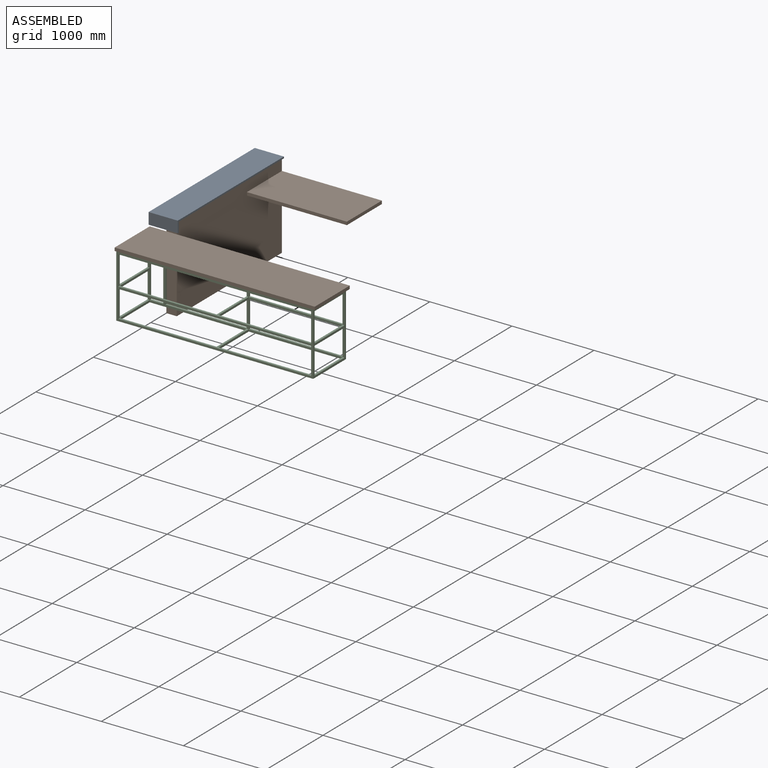
[diagram: assembled view]
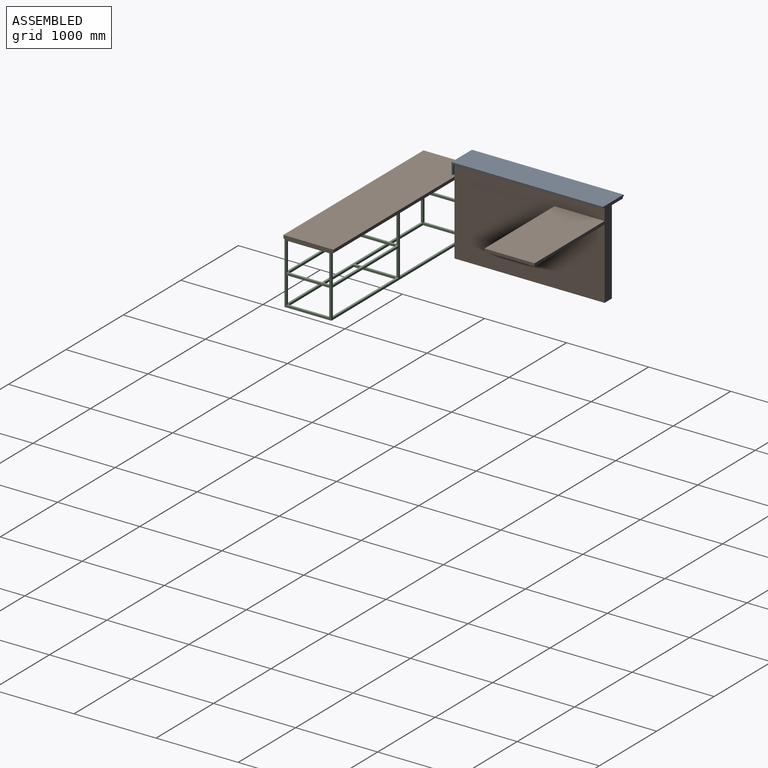
[diagram: assembled view, second angle]
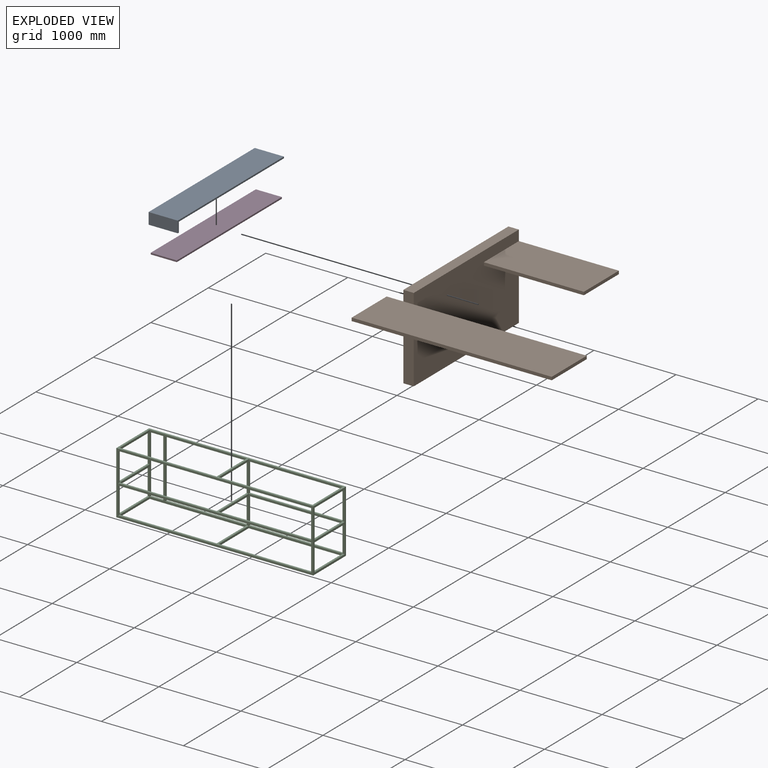
[diagram: exploded view]
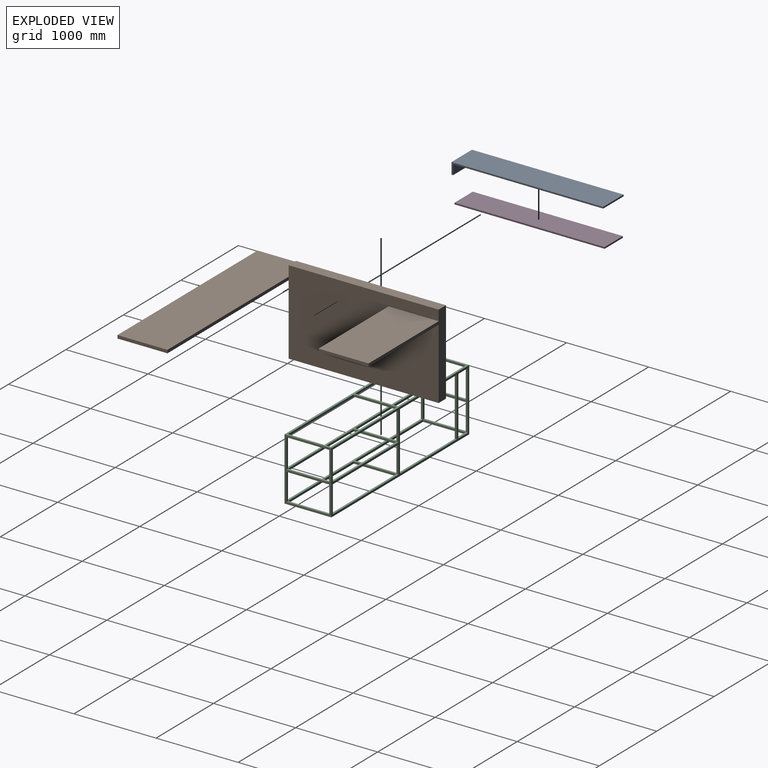
[diagram: exploded view, second angle]
ASSEMBLY  parts=4 mates=7
PART A: 8 faces, bbox 355.6x1847.9x139.7 mm
  f0: plane 355.6x19.05mm, normal (0,1,0), area 6774.2mm2, adj f1,f5,f6,f7
  f1: plane 1847.85x355.6mm, normal (0,0,1), area 657095.5mm2, adj f0,f2,f6,f7
  f2: plane 355.6x139.7mm, normal (0,-1,0), area 49677.3mm2, adj f1,f3,f6,f7
  f3: plane 355.6x19.05mm, normal (0,0,-1), area 6774.2mm2, adj f2,f4,f6,f7
  f4: plane 355.6x120.65mm, normal (0,1,0), area 42903.1mm2, adj f3,f5,f6,f7
  f5: plane 1828.8x355.6mm, normal (0,0,-1), area 650321.3mm2, adj f0,f4,f6,f7
  f6: plane 1847.85x139.7mm, normal (1,0,0), area 37499.9mm2, adj f0,f1,f2,f3,f4,f5
  f7: plane 1847.85x139.7mm, normal (-1,0,0), area 37499.9mm2, adj f0,f1,f2,f3,f4,f5
PART B: 18 faces, bbox 2438.4x2438.4x1028.7 mm
  f0: plane 127x127mm, normal (0,-1,0), area 16129mm2, adj f1,f3,f5,f17
  f1: plane 1828.8x1028.7mm, normal (1,0,0), area 1858060.8mm2, adj f0,f2,f4,f5,f6,f7,f8,f9
  f2: plane 1346.2x1028.7mm, normal (0,1,0), area 177096.4mm2, adj f1,f3,f5,f6,f7,f9,f10
  f3: plane 1828.8x1028.7mm, normal (-1,0,0), area 1881286.6mm2, adj f0,f2,f4,f5,f6,f11
  f4: plane 863.6x127mm, normal (0,-1,0), area 109677.2mm2, adj f1,f3,f6,f16
  f5: plane 1828.8x127mm, normal (0,0,1), area 232257.6mm2, adj f0,f1,f2,f3
  f6: plane 1828.8x127mm, normal (0,0,-1), area 232257.6mm2, adj f1,f2,f3,f4
  f7: plane 1219.2x609.6mm, normal (0,0,1), area 743224.3mm2, adj f1,f2,f8,f10
  f8: plane 1219.2x38.1mm, normal (0,-1,0), area 46451.5mm2, adj f1,f7,f9,f10
  f9: plane 1219.2x609.6mm, normal (0,0,-1), area 743224.3mm2, adj f1,f2,f8,f10
  f10: plane 609.6x38.1mm, normal (1,0,0), area 23225.8mm2, adj f2,f7,f8,f9
  f11: plane 203.2x38.1mm, normal (0,1,0), area 7741.9mm2, adj f3,f13,f16,f17
  f12: plane 2108.2x38.1mm, normal (0,1,0), area 80322.4mm2, adj f1,f15,f16,f17
  f13: plane 609.6x38.1mm, normal (-1,0,0), area 23225.8mm2, adj f11,f14,f16,f17
  f14: plane 2438.4x38.1mm, normal (0,-1,0), area 92903mm2, adj f13,f15,f16,f17
  f15: plane 609.6x38.1mm, normal (1,0,0), area 23225.8mm2, adj f12,f14,f16,f17
  f16: plane 2438.4x609.6mm, normal (0,0,-1), area 1486448.6mm2, adj f4,f11,f12,f13,f14,f15
  f17: plane 2438.4x609.6mm, normal (0,0,1), area 1486448.6mm2, adj f0,f11,f12,f13,f14,f15
PART C: 68 faces, bbox 2400.3x571.5x762 mm
  f0: plane 990.6x25.4mm, normal (0,0,-1), area 25161.2mm2, adj f41,f56,f59,f67
  f1: plane 990.6x25.4mm, normal (0,0,1), area 25161.2mm2, adj f41,f56,f59,f67
  f2: plane 355.6x25.4mm, normal (-1,0,0), area 9032.2mm2, adj f20,f54,f59,f63
  f3: plane 520.7x25.4mm, normal (-1,0,0), area 13225.8mm2, adj f16,f35,f37,f64
  f4: plane 330.2x25.4mm, normal (1,0,0), area 8387.1mm2, adj f8,f59,f62,f65
  f5: plane 520.7x25.4mm, normal (1,0,0), area 13225.8mm2, adj f16,f24,f30,f64
  f6: plane 165.1x25.4mm, normal (0,0,-1), area 4193.5mm2, adj f47,f56,f59,f66
  f7: plane 2349.5x546.1mm, normal (0,0,-1), area 72903.1mm2, adj f15,f17,f19,f21,f31,f42,f43,f61
  f8: plane 1143x25.4mm, normal (0,0,1), area 29032.2mm2, adj f4,f36,f53,f59
  f9: plane 2349.5x546.1mm, normal (0,0,1), area 72903.1mm2, adj f10,f14,f23,f28,f31,f51,f52,f62
  f10: plane 1143x25.4mm, normal (0,1,0), area 29032.2mm2, adj f9,f26,f34,f52
  f11: plane 355.6x25.4mm, normal (0,1,0), area 9032.2mm2, adj f19,f25,f46,f50
  f12: plane 330.2x25.4mm, normal (0,1,0), area 8387.1mm2, adj f23,f25,f44,f48
  f13: plane 1181.1x25.4mm, normal (0,1,0), area 29999.9mm2, adj f24,f30,f41,f47
  f14: plane 1181.1x25.4mm, normal (0,1,0), area 29999.9mm2, adj f9,f26,f45,f51
  f15: plane 1181.1x25.4mm, normal (0,1,0), area 29999.9mm2, adj f7,f29,f42,f49
  f16: plane 1143x25.4mm, normal (0,1,0), area 29032.2mm2, adj f3,f5,f24,f30
  f17: plane 1143x25.4mm, normal (0,1,0), area 29032.2mm2, adj f7,f29,f39,f43
  f18: plane 355.6x25.4mm, normal (0,1,0), area 9032.2mm2, adj f21,f27,f37,f38
  f19: plane 355.6x25.4mm, normal (1,0,0), area 9032.2mm2, adj f7,f11,f30,f31
  f20: plane 1143x25.4mm, normal (0,0,-1), area 29032.2mm2, adj f2,f40,f55,f59
  f21: plane 355.6x25.4mm, normal (-1,0,0), area 9032.2mm2, adj f7,f18,f30,f31
  f22: plane 165.1x25.4mm, normal (0,0,1), area 4193.5mm2, adj f47,f56,f59,f66
  f23: plane 330.2x25.4mm, normal (1,0,0), area 8387.1mm2, adj f9,f12,f24,f31
  f24: plane 2349.5x546.1mm, normal (0,0,-1), area 72903.1mm2, adj f5,f13,f16,f23,f28,f31,f41,f62
  f25: plane 762x571.5mm, normal (-1,0,0), area 78386.9mm2, adj f11,f12,f26,f29,f31,f44,f46,f48
  f26: plane 2400.3x571.5mm, normal (0,0,-1), area 161612.6mm2, adj f10,f14,f25,f27,f31,f34,f45,f51
  f27: plane 762x571.5mm, normal (1,0,0), area 78386.9mm2, adj f18,f26,f29,f31,f32,f33,f35,f37
  f28: plane 330.2x25.4mm, normal (-1,0,0), area 8387.1mm2, adj f9,f24,f31,f32
  f29: plane 2400.3x571.5mm, normal (0,0,1), area 161612.6mm2, adj f15,f17,f25,f27,f31,f39,f42,f43
  f30: plane 2349.5x546.1mm, normal (0,0,1), area 72903.1mm2, adj f5,f13,f16,f19,f21,f31,f41,f61
  f31: plane 2400.3x762mm, normal (0,-1,0), area 217741.5mm2, adj f7,f9,f19,f21,f23,f24,f25,f26
  f32: plane 330.2x25.4mm, normal (0,1,0), area 8387.1mm2, adj f27,f28,f33,f35
  f33: plane 520.7x25.4mm, normal (0,0,1), area 13225.8mm2, adj f27,f32,f34,f60
  f34: plane 520.7x25.4mm, normal (-1,0,0), area 13225.8mm2, adj f10,f26,f33,f53
  f35: plane 520.7x25.4mm, normal (0,0,-1), area 13225.8mm2, adj f3,f27,f32,f60
  f36: plane 330.2x25.4mm, normal (-1,0,0), area 8387.1mm2, adj f8,f59,f60,f65
  f37: plane 520.7x25.4mm, normal (0,0,1), area 13225.8mm2, adj f3,f18,f27,f54
  f38: plane 520.7x25.4mm, normal (0,0,-1), area 13225.8mm2, adj f18,f27,f39,f54
  f39: plane 520.7x25.4mm, normal (-1,0,0), area 13225.8mm2, adj f17,f29,f38,f55
  f40: plane 355.6x25.4mm, normal (1,0,0), area 9032.2mm2, adj f20,f59,f61,f63
  f41: plane 711.2x546.1mm, normal (-1,0,0), area 31290.3mm2, adj f0,f1,f13,f24,f30,f59,f61,f62
  f42: plane 520.7x25.4mm, normal (-1,0,0), area 13225.8mm2, adj f7,f15,f29,f56
  f43: plane 520.7x25.4mm, normal (1,0,0), area 13225.8mm2, adj f7,f17,f29,f55
  f44: plane 520.7x25.4mm, normal (0,0,1), area 13225.8mm2, adj f12,f25,f45,f57
  f45: plane 520.7x25.4mm, normal (1,0,0), area 13225.8mm2, adj f14,f26,f44,f56
  f46: plane 520.7x25.4mm, normal (0,0,1), area 13225.8mm2, adj f11,f25,f47,f58
  f47: plane 711.2x546.1mm, normal (1,0,0), area 31290.3mm2, adj f6,f13,f22,f46,f48,f57,f58,f59
  f48: plane 520.7x25.4mm, normal (0,0,-1), area 13225.8mm2, adj f12,f25,f47,f57
  f49: plane 520.7x25.4mm, normal (1,0,0), area 13225.8mm2, adj f15,f29,f50,f56
  f50: plane 520.7x25.4mm, normal (0,0,-1), area 13225.8mm2, adj f11,f25,f49,f58
  f51: plane 520.7x25.4mm, normal (-1,0,0), area 13225.8mm2, adj f9,f14,f26,f56
  f52: plane 520.7x25.4mm, normal (1,0,0), area 13225.8mm2, adj f9,f10,f26,f53
  f53: plane 1143x25.4mm, normal (0,-1,0), area 29032.2mm2, adj f8,f26,f34,f52
  f54: plane 355.6x25.4mm, normal (0,-1,0), area 9032.2mm2, adj f2,f27,f37,f38
  f55: plane 1143x25.4mm, normal (0,-1,0), area 29032.2mm2, adj f20,f29,f39,f43
  f56: plane 1181.1x762mm, normal (0,-1,0), area 78064.4mm2, adj f0,f1,f6,f22,f26,f29,f42,f45
  f57: plane 330.2x25.4mm, normal (0,-1,0), area 8387.1mm2, adj f25,f44,f47,f48
  f58: plane 355.6x25.4mm, normal (0,-1,0), area 9032.2mm2, adj f25,f46,f47,f50
  f59: plane 2400.3x762mm, normal (0,1,0), area 223225.4mm2, adj f0,f1,f2,f4,f6,f8,f20,f22
  f60: plane 330.2x25.4mm, normal (0,-1,0), area 8387.1mm2, adj f27,f33,f35,f36
  f61: plane 355.6x25.4mm, normal (0,-1,0), area 9032.2mm2, adj f7,f30,f40,f41
  f62: plane 330.2x25.4mm, normal (0,-1,0), area 8387.1mm2, adj f4,f9,f24,f41
  f63: plane 1143x25.4mm, normal (0,0,1), area 29032.2mm2, adj f2,f40,f59,f64
  f64: plane 1143x25.4mm, normal (0,-1,0), area 29032.2mm2, adj f3,f5,f63,f65
  f65: plane 1143x25.4mm, normal (0,0,-1), area 29032.2mm2, adj f4,f36,f59,f64
  f66: plane 711.2x25.4mm, normal (-1,0,0), area 18064.5mm2, adj f6,f22,f56,f59
  f67: plane 711.2x25.4mm, normal (1,0,0), area 18064.5mm2, adj f0,f1,f56,f59
PART D: 6 faces, bbox 317.5x1828.8x19.1 mm
  f0: plane 317.5x19.05mm, normal (0,1,0), area 6048.4mm2, adj f1,f3,f4,f5
  f1: plane 1828.8x317.5mm, normal (0,0,1), area 580644mm2, adj f0,f2,f4,f5
  f2: plane 317.5x19.05mm, normal (0,-1,0), area 6048.4mm2, adj f1,f3,f4,f5
  f3: plane 1828.8x317.5mm, normal (0,0,-1), area 580644mm2, adj f0,f2,f4,f5
  f4: plane 1828.8x19.05mm, normal (1,0,0), area 34838.6mm2, adj f0,f1,f2,f3
  f5: plane 1828.8x19.05mm, normal (-1,0,0), area 34838.6mm2, adj f0,f1,f2,f3
PLACE A t=(-1596.86,855.63,-21.4)mm
PLACE B t=(-1006.04,1378.21,-1288.63)mm
PLACE C t=(-294.16,-1034.79,-854.21)mm
PLACE D t=(-1584.16,18.29,-236.28)mm
MATE planar D.f3 <-> B.f5  axis (0,0,-1) through (-1425.41,463.81,-259.93)mm
MATE planar D.f0 <-> B.f2  axis (0,1,0) through (-1425.41,1378.21,-250.4)mm
MATE planar D.f4 <-> B.f1  axis (1,0,0) through (-1266.66,463.81,-250.4)mm
MATE planar A.f7 <-> B.f13  axis (-1,0,0) through (-1596.86,398.24,-235.63)mm
MATE planar B.f16 <-> C.f29  axis (0,0,-1) through (-377.66,-755.39,-425.03)mm
MATE planar A.f5 <-> D.f1  axis (0,0,-1) through (-1419.06,463.81,-240.88)mm
MATE planar A.f4 <-> B.f0  axis (0,1,0) through (-1419.06,-450.59,-301.2)mm
